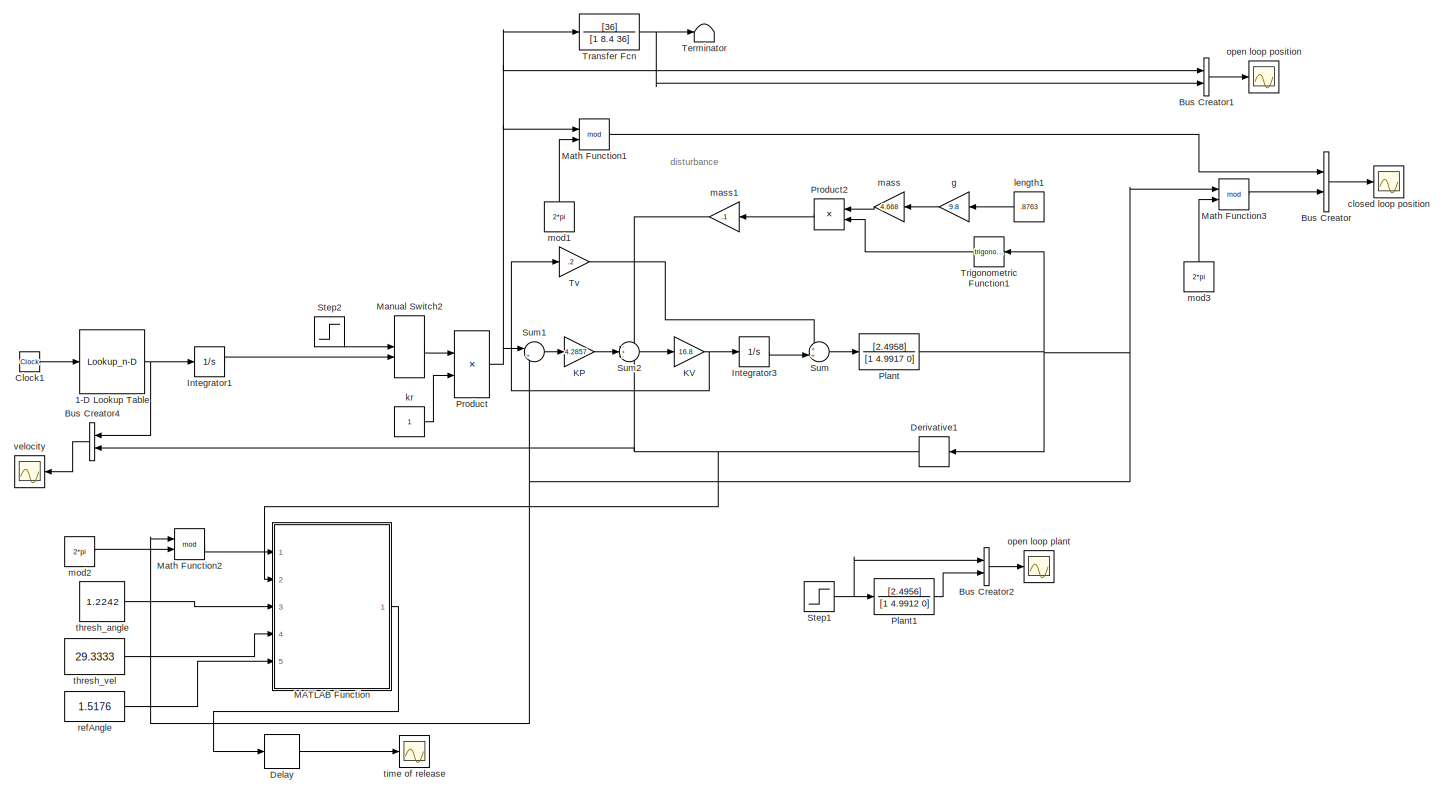
[diagram: root canvas - part 1/1, most of the canvas]
MODEL slx_2d3ef377b15a
KIND model
CONFIG AbsTol = auto
CONFIG FixedStep = .01
CONFIG MaxStep = auto
CONFIG MinStep = auto
CONFIG RelTol = 1e-3
CONFIG SampleTimeConstraint = Unconstrained
CONFIG Solver = ode4
CONFIG SolverMode = Auto
CONFIG SolverName = ode4
CONFIG StartTime = 0.0
CONFIG StopTime = 20
BLOCK [Lookup_n-D] 1-D Lookup Table
  BreakpointsForDimension1 = [0, 3, 15, 16,20]
  NumberOfTableDimensions = 1
  Ports = [1, 1]
  RndMeth = Simplest
  Table = [0, 29.33, 29.33, 0, 0]
BLOCK [BusCreator] Bus Creator
  DisplayOption = bar
  Inputs = 2
  Ports = [2, 1]
BLOCK [BusCreator] Bus Creator1
  DisplayOption = bar
  Inputs = 2
  Ports = [2, 1]
BLOCK [BusCreator] Bus Creator2
  DisplayOption = bar
  Inputs = 2
  Ports = [2, 1]
BLOCK [BusCreator] Bus Creator4
  DisplayOption = bar
  Inputs = 2
  Ports = [2, 1]
BLOCK [Clock] Clock1
BLOCK [Delay] Delay
  DelayLength = 1
  InitialCondition = 0
  InputPortMap = u0
  Ports = [1, 1]
BLOCK [Derivative] Derivative1
BLOCK [Integrator] Integrator1
  Ports = [1, 1]
BLOCK [Integrator] Integrator3
  Ports = [1, 1]
BLOCK [Gain] KP
  Gain = 4.2857
  OutDataTypeStr = Inherit: Inherit via internal rule
  ParamDataTypeStr = Inherit: Inherit via internal rule
  SaturateOnIntegerOverflow = off
BLOCK [Gain] KV
  Gain = 16.8
  OutDataTypeStr = Inherit: Inherit via internal rule
  ParamDataTypeStr = Inherit: Inherit via internal rule
  SaturateOnIntegerOverflow = off
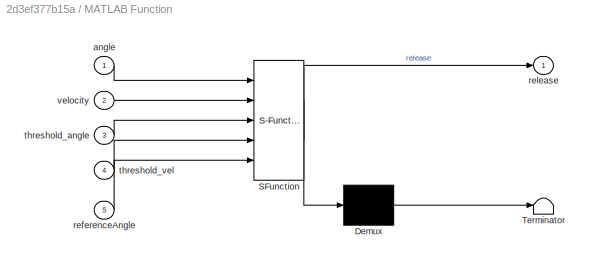
BLOCK [SubSystem] MATLAB Function
  ErrorFcn = Stateflow.Translate.translate
  PermitHierarchicalResolution = ExplicitOnly
  Ports = [5, 1]
  RequestExecContextInheritance = off
  SFBlockType = MATLAB Function
  TreatAsAtomicUnit = on
BLOCK [Demux] MATLAB Function/ Demux 
  Outputs = 1
  Ports = [1, 1]
BLOCK [S-Function] MATLAB Function/ SFunction 
  EnableBusSupport = on
  FunctionName = sf_sfun
  PortCounts = [5 2]
  Ports = [5, 2]
  Tag = Stateflow S-Function RobotPitcherFinal 2
BLOCK [Terminator] MATLAB Function/ Terminator 
BLOCK [Inport] MATLAB Function/angle
  IconDisplay = Port number
BLOCK [Inport] MATLAB Function/referenceAngle
  IconDisplay = Port number
  Port = 5
BLOCK [Outport] MATLAB Function/release
  IconDisplay = Port number
BLOCK [Inport] MATLAB Function/threshold_angle
  IconDisplay = Port number
  Port = 3
BLOCK [Inport] MATLAB Function/threshold_vel
  IconDisplay = Port number
  Port = 4
BLOCK [Inport] MATLAB Function/velocity
  IconDisplay = Port number
  Port = 2
BLOCK [ManualSwitch] Manual Switch2
  CurrentSetting = 0
BLOCK [Math] Math Function1
  Operator = mod
  Ports = [2, 1]
BLOCK [Math] Math Function2
  Operator = mod
  Ports = [2, 1]
BLOCK [Math] Math Function3
  Operator = mod
  Ports = [2, 1]
BLOCK [TransferFcn] Plant
  Denominator = [1 4.9917 0]
  Numerator = [2.4958]
BLOCK [TransferFcn] Plant1
  Denominator = [1 4.9912 0]
  Numerator = [2.4956]
BLOCK [Product] Product
  InputSameDT = off
  OutDataTypeStr = Inherit: Inherit via internal rule
  Ports = [2, 1]
  RndMeth = Floor
  SaturateOnIntegerOverflow = off
BLOCK [Product] Product2
  InputSameDT = off
  OutDataTypeStr = Inherit: Inherit via internal rule
  Ports = [2, 1]
  RndMeth = Floor
  SaturateOnIntegerOverflow = off
BLOCK [Step] Step1
  After = 10
  SampleTime = 0
BLOCK [Step] Step2
  After = 10
  SampleTime = 0
BLOCK [Sum] Sum
  IconShape = round
  InputSameDT = off
  Inputs = ++|
  OutDataTypeStr = Inherit: Inherit via internal rule
  Ports = [2, 1]
  SaturateOnIntegerOverflow = off
BLOCK [Sum] Sum1
  IconShape = round
  InputSameDT = off
  Inputs = |+-
  OutDataTypeStr = Inherit: Inherit via internal rule
  Ports = [2, 1]
  SaturateOnIntegerOverflow = off
BLOCK [Sum] Sum2
  IconShape = round
  InputSameDT = off
  Inputs = -+-
  OutDataTypeStr = Inherit: Inherit via internal rule
  Ports = [3, 1]
  SaturateOnIntegerOverflow = off
BLOCK [Terminator] Terminator
BLOCK [TransferFcn] Transfer Fcn
  Denominator = [1 8.4 36]
  Numerator = [36]
BLOCK [Trigonometry] Trigonometric Function1
  Ports = [1, 1]
BLOCK [Gain] Tv
  Gain = .2
  OutDataTypeStr = Inherit: Inherit via internal rule
  ParamDataTypeStr = Inherit: Inherit via internal rule
  SaturateOnIntegerOverflow = off
BLOCK [Scope] closed loop position
  Floating = off
  LimitDataPoints = off
  NumInputPorts = 1
  Ports = [1]
  SaveName = closedLoop_system
  SaveToWorkspace = on
  TimeRange = 5
  YMax = 1
  YMin = 0
BLOCK [Gain] g
  Gain = 9.8
  OutDataTypeStr = Inherit: Inherit via internal rule
  ParamDataTypeStr = Inherit: Inherit via internal rule
  SaturateOnIntegerOverflow = off
BLOCK [Constant] kr
BLOCK [Constant] length1 
  Value = .8763
BLOCK [Gain] mass
  Gain = 4.668
  OutDataTypeStr = Inherit: Inherit via internal rule
  ParamDataTypeStr = Inherit: Inherit via internal rule
  SaturateOnIntegerOverflow = off
BLOCK [Gain] mass1
  Gain = .1
  OutDataTypeStr = Inherit: Inherit via internal rule
  ParamDataTypeStr = Inherit: Inherit via internal rule
  SaturateOnIntegerOverflow = off
BLOCK [Constant] mod1
  Value = 2*pi
BLOCK [Constant] mod2
  Value = 2*pi
BLOCK [Constant] mod3
  Value = 2*pi
BLOCK [Scope] open loop plant
  Floating = off
  LimitDataPoints = off
  NumInputPorts = 1
  Ports = [1]
  SaveName = stepResponse_manipulator
  SaveToWorkspace = on
  YMax = -0.2
  YMin = -0.575
BLOCK [Scope] open loop position
  Floating = off
  LimitDataPoints = off
  NumInputPorts = 1
  Ports = [1]
  SaveName = openloop_system
  SaveToWorkspace = on
  YMax = -0.505818
  YMin = -0.559062
BLOCK [Constant] refAngle
  Value = 1.5176
BLOCK [Constant] thresh_angle
  Value = 1.2242
BLOCK [Constant] thresh_vel
  Value = 29.3333
BLOCK [Scope] time of release
  Floating = off
  LimitDataPoints = off
  NumInputPorts = 1
  Ports = [1]
  SaveName = timeRelease
  SaveToWorkspace = on
  YMax = -0.2
  YMin = -0.575
BLOCK [Scope] velocity
  Floating = off
  LimitDataPoints = off
  NumInputPorts = 1
  Ports = [1]
  SaveName = velocityTrajectoryResponse
  SaveToWorkspace = on
  YMax = 40
  YMin = -2.5
ANNOTATION (root): disturbance
NET 1-D Lookup Table:1 -> Bus Creator4:1, Integrator1:1
LINE Bus Creator1:1 -> open loop position:1
LINE Bus Creator2:1 -> open loop plant:1
LINE Bus Creator4:1 -> velocity:1
LINE Bus Creator:1 -> closed loop position:1
LINE Clock1:1 -> 1-D Lookup Table:1
LINE Delay:1 -> time of release:1
NET Derivative1:1 -> Bus Creator4:2, MATLAB Function:2, Sum2:3
LINE Integrator1:1 -> Manual Switch2:2
LINE Integrator3:1 -> Sum:2
LINE KP:1 -> Sum2:2
NET KV:1 -> Integrator3:1, Tv:1
LINE MATLAB Function:1 -> Delay:1
LINE Manual Switch2:1 -> Product:1
LINE Math Function1:1 -> Bus Creator:1
LINE Math Function2:1 -> MATLAB Function:1
LINE Math Function3:1 -> Bus Creator:2
LINE Plant1:1 -> Bus Creator2:2
NET Plant:1 -> Derivative1:1, Math Function2:1, Math Function3:1, Sum1:2, Trigonometric Function1:1
LINE Product2:1 -> mass1:1
NET Product:1 -> Bus Creator1:1, Math Function1:1, Sum1:1, Transfer Fcn:1
NET Step1:1 -> Bus Creator2:1, Plant1:1
LINE Step2:1 -> Manual Switch2:1
LINE Sum1:1 -> KP:1
LINE Sum2:1 -> KV:1
LINE Sum:1 -> Plant:1
NET Transfer Fcn:1 -> Bus Creator1:2, Terminator:1
LINE Trigonometric Function1:1 -> Product2:2
LINE Tv:1 -> Sum:1
LINE g:1 -> mass:1
LINE kr:1 -> Product:2
LINE length1 :1 -> g:1
LINE mass1:1 -> Sum2:1
LINE mass:1 -> Product2:1
LINE mod1:1 -> Math Function1:2
LINE mod2:1 -> Math Function2:2
LINE mod3:1 -> Math Function3:2
LINE refAngle:1 -> MATLAB Function:5
LINE thresh_angle:1 -> MATLAB Function:3
LINE thresh_vel:1 -> MATLAB Function:4
note: NET lines group one-source signal fan-out (src -> all destinations, sorted); 1:1 wires keep LINE
CHART MATLAB Function states=1 transitions=1
  STATE_LABEL 'eML_blk_kernel()'
  STATE_LABEL 'SCRIPT:\nfunction release = fcn(angle, velocity, threshold_angle,threshold_vel, referenceAngle)\n%#codegen\n \nif (angle >= threshold_angle && angle<=referenceAngle && velocity >= threshold_vel)\nrelease=1;\nelse\nrelease=0;\nend'
